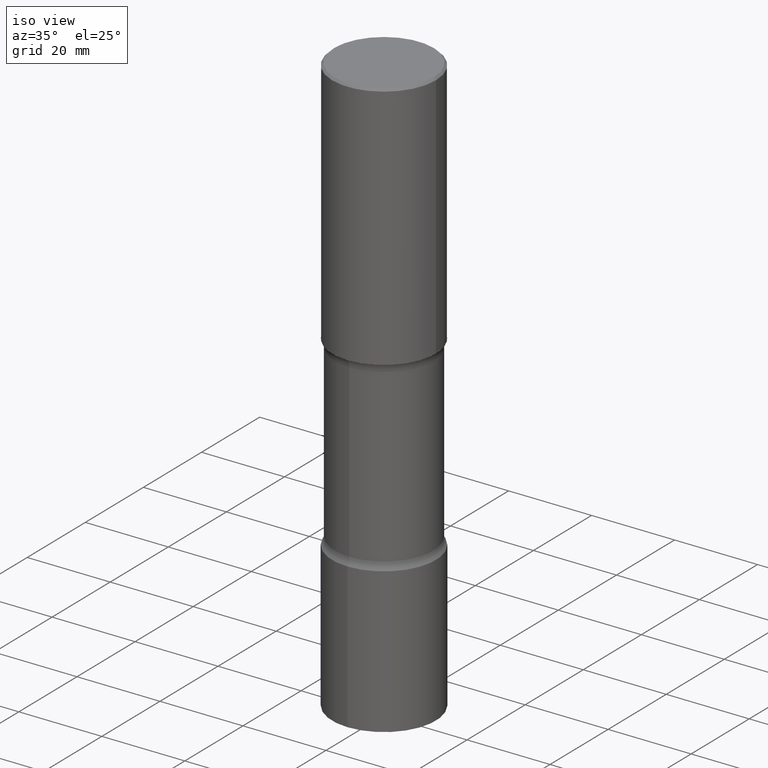
[diagram: clean part render]
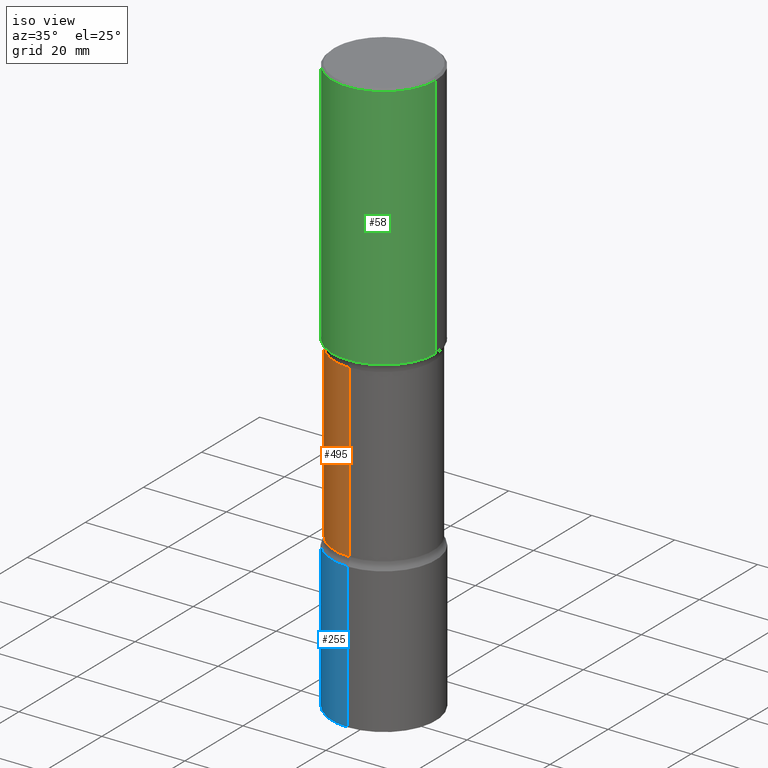
[diagram: same view with three faces highlighted in distinct colors, each labeled with its STEP entity id]
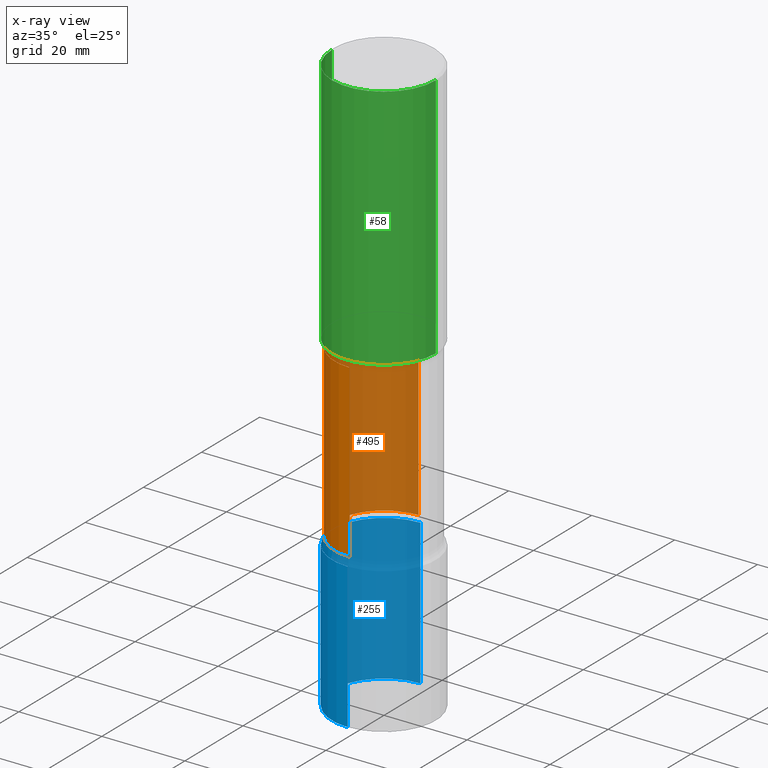
[diagram: x-ray of the same camera — body ghosted, the three highlighted faces saturated]
A machine part, iso view with three faces highlighted in distinct colors.
The next image is the same camera in x-ray (body ghosted, the three faces saturated) — at least one of them is partly hidden behind the body in this view.
Their STEP definitions:

[orange] entity #495 — the highlighted cylindrical surface (partial cylindrical patch) has radius 11.8745 mm, axis along (0, -0, -1).
#23 = ORIENTED_EDGE ( 'NONE', *, *, #118, .F. ) ;
#61 = CARTESIAN_POINT ( 'NONE',  ( 1.362460799564217853E-28, -1.903573477369563005E-14, -5.511800000000000033 ) ) ;
#64 = VERTEX_POINT ( 'NONE', #504 ) ;
#66 = DIRECTION ( 'NONE',  ( 6.982962677686265133E-15, 1.000000000000000000, -2.337410048054982819E-15 ) ) ;
#67 = EDGE_CURVE ( 'NONE', #64, #481, #508, .T. ) ;
#72 = AXIS2_PLACEMENT_3D ( 'NONE', #349, #318, #201 ) ;
#81 = CIRCLE ( 'NONE', #302, 0.4675000000000004707 ) ;
#106 = EDGE_LOOP ( 'NONE', ( #23, #200, #121, #144 ) ) ;
#117 = CIRCLE ( 'NONE', #72, 0.4675000000000001932 ) ;
#118 = EDGE_CURVE ( 'NONE', #402, #207, #187, .T. ) ;
#121 = ORIENTED_EDGE ( 'NONE', *, *, #67, .T. ) ;
#144 = ORIENTED_EDGE ( 'NONE', *, *, #247, .F. ) ;
#181 = CARTESIAN_POINT ( 'NONE',  ( -3.207282813958056946E-15, -0.4675000000000194000, -5.511799999999999145 ) ) ;
#187 = LINE ( 'NONE', #181, #348 ) ;
#200 = ORIENTED_EDGE ( 'NONE', *, *, #328, .T. ) ;
#201 = DIRECTION ( 'NONE',  ( 6.982962677686265133E-15, 1.000000000000000000, -3.506115072082475215E-15 ) ) ;
#207 = VERTEX_POINT ( 'NONE', #345 ) ;
#225 = CARTESIAN_POINT ( 'NONE',  ( 3.264535051818467659E-15, 0.4674999999999812639, -5.511800000000000921 ) ) ;
#235 = DIRECTION ( 'NONE',  ( 6.982962677686265133E-15, 1.000000000000000000, -3.506115072082473243E-15 ) ) ;
#247 = EDGE_CURVE ( 'NONE', #207, #481, #81, .T. ) ;
#302 = AXIS2_PLACEMENT_3D ( 'NONE', #353, #397, #235 ) ;
#304 = DIRECTION ( 'NONE',  ( 2.550468296811760761E-29, -3.341116092065950250E-15, -1.000000000000000000 ) ) ;
#318 = DIRECTION ( 'NONE',  ( 2.550468296811760761E-29, -3.341116092065950250E-15, -1.000000000000000000 ) ) ;
#327 = CARTESIAN_POINT ( 'NONE',  ( -3.291838451780669043E-15, -0.4675000000000089639, -2.436731050576250723 ) ) ;
#328 = EDGE_CURVE ( 'NONE', #402, #64, #117, .T. ) ;
#342 = AXIS2_PLACEMENT_3D ( 'NONE', #61, #369, #66 ) ;
#345 = CARTESIAN_POINT ( 'NONE',  ( -3.291838451780625655E-15, -0.4675000000000146816, -4.059268949423747053 ) ) ;
#348 = VECTOR ( 'NONE', #304, 39.37007874015748143 ) ;
#349 = CARTESIAN_POINT ( 'NONE',  ( 5.781742129626663018E-29, -8.761572422563614587E-15, -2.436731050576252500 ) ) ;
#353 = CARTESIAN_POINT ( 'NONE',  ( 9.919973601012768158E-29, -1.418265990638985854E-14, -4.059268949423747941 ) ) ;
#366 = VECTOR ( 'NONE', #387, 39.37007874015748143 ) ;
#369 = DIRECTION ( 'NONE',  ( 2.550468296811760761E-29, -3.341116092065950250E-15, -1.000000000000000000 ) ) ;
#387 = DIRECTION ( 'NONE',  ( 2.550468296811760761E-29, -3.341116092065950250E-15, -1.000000000000000000 ) ) ;
#397 = DIRECTION ( 'NONE',  ( 2.550468296811760761E-29, -3.341116092065950250E-15, -1.000000000000000000 ) ) ;
#402 = VERTEX_POINT ( 'NONE', #327 ) ;
#448 = CARTESIAN_POINT ( 'NONE',  ( 3.264535051818431371E-15, 0.4674999999999862599, -4.059268949423749717 ) ) ;
#455 = FACE_OUTER_BOUND ( 'NONE', #106, .T. ) ;
#481 = VERTEX_POINT ( 'NONE', #448 ) ;
#482 = CYLINDRICAL_SURFACE ( 'NONE', #342, 0.4675000000000003597 ) ;
#495 = ADVANCED_FACE ( 'NONE', ( #455 ), #482, .T. ) ;
#504 = CARTESIAN_POINT ( 'NONE',  ( 3.264535051818388378E-15, 0.4674999999999914779, -2.436731050576254276 ) ) ;
#508 = LINE ( 'NONE', #225, #366 ) ;

[blue] entity #255 — the highlighted cylindrical surface (partial cylindrical patch) has radius 12.5006 mm, axis along (-0, 0, 1).
#15 = EDGE_CURVE ( 'NONE', #432, #172, #110, .T. ) ;
#24 = DIRECTION ( 'NONE',  ( -2.445706778904536167E-29, 3.491140548364399135E-15, 1.000000000000000000 ) ) ;
#27 = CARTESIAN_POINT ( 'NONE',  ( 1.011006268263557140E-28, -1.443167679882875537E-14, -4.133799999999999919 ) ) ;
#29 = VECTOR ( 'NONE', #425, 39.37007874015748143 ) ;
#49 = VERTEX_POINT ( 'NONE', #137 ) ;
#65 = DIRECTION ( 'NONE',  ( -6.982962677686265922E-15, -1.000000000000000000, 4.440675393541422465E-15 ) ) ;
#91 = DIRECTION ( 'NONE',  ( -6.982962677686265922E-15, -1.000000000000000000, 3.491140548364399135E-15 ) ) ;
#105 = LINE ( 'NONE', #444, #427 ) ;
#110 = CIRCLE ( 'NONE', #492, 0.4921499999999999209 ) ;
#137 = CARTESIAN_POINT ( 'NONE',  ( -3.436665081823194408E-15, -0.4921500000000142983, -4.133799999999998143 ) ) ;
#141 = CIRCLE ( 'NONE', #228, 0.4921499999999999209 ) ;
#146 = LINE ( 'NONE', #149, #29 ) ;
#147 = AXIS2_PLACEMENT_3D ( 'NONE', #355, #360, #91 ) ;
#149 = CARTESIAN_POINT ( 'NONE',  ( -3.436665081823295382E-15, -0.4921499999999999209, 1.718164820877538749E-15 ) ) ;
#172 = VERTEX_POINT ( 'NONE', #339 ) ;
#198 = EDGE_CURVE ( 'NONE', #172, #49, #146, .T. ) ;
#218 = DIRECTION ( 'NONE',  ( -2.445706778904536167E-29, 3.491140548364399135E-15, 1.000000000000000000 ) ) ;
#219 = DIRECTION ( 'NONE',  ( -2.445706778904536167E-29, 3.491140548364399135E-15, 1.000000000000000000 ) ) ;
#222 = ORIENTED_EDGE ( 'NONE', *, *, #15, .T. ) ;
#228 = AXIS2_PLACEMENT_3D ( 'NONE', #27, #24, #446 ) ;
#255 = ADVANCED_FACE ( 'NONE', ( #438 ), #277, .T. ) ;
#257 = ORIENTED_EDGE ( 'NONE', *, *, #408, .F. ) ;
#258 = ORIENTED_EDGE ( 'NONE', *, *, #198, .T. ) ;
#277 = CYLINDRICAL_SURFACE ( 'NONE', #147, 0.4921499999999999209 ) ;
#294 = CARTESIAN_POINT ( 'NONE',  ( 3.496936074043449648E-15, 0.4921499999999806585, -5.511800000000001809 ) ) ;
#339 = CARTESIAN_POINT ( 'NONE',  ( -3.436665081823160487E-15, -0.4921500000000191832, -5.511799999999997368 ) ) ;
#354 = VERTEX_POINT ( 'NONE', #430 ) ;
#355 = CARTESIAN_POINT ( 'NONE',  ( 0.000000000000000000, 0.000000000000000000, 0.000000000000000000 ) ) ;
#360 = DIRECTION ( 'NONE',  ( -2.445706778904536167E-29, 3.491140548364399135E-15, 1.000000000000000000 ) ) ;
#408 = EDGE_CURVE ( 'NONE', #432, #354, #105, .T. ) ;
#416 = ORIENTED_EDGE ( 'NONE', *, *, #443, .F. ) ;
#425 = DIRECTION ( 'NONE',  ( -2.445706778904536167E-29, 3.491140548364399135E-15, 1.000000000000000000 ) ) ;
#427 = VECTOR ( 'NONE', #218, 39.37007874015748143 ) ;
#430 = CARTESIAN_POINT ( 'NONE',  ( 3.496936074043466609E-15, 0.4921499999999854325, -4.133800000000001695 ) ) ;
#432 = VERTEX_POINT ( 'NONE', #294 ) ;
#438 = FACE_OUTER_BOUND ( 'NONE', #442, .T. ) ;
#442 = EDGE_LOOP ( 'NONE', ( #257, #222, #258, #416 ) ) ;
#443 = EDGE_CURVE ( 'NONE', #354, #49, #141, .T. ) ;
#444 = CARTESIAN_POINT ( 'NONE',  ( 3.496936074043331714E-15, 0.4921499999999999209, -1.718164820877538749E-15 ) ) ;
#446 = DIRECTION ( 'NONE',  ( -6.982962677686265922E-15, -1.000000000000000000, 3.330506545156066652E-15 ) ) ;
#449 = CARTESIAN_POINT ( 'NONE',  ( 1.348024662396602390E-28, -1.924246847447489311E-14, -5.511800000000000033 ) ) ;
#492 = AXIS2_PLACEMENT_3D ( 'NONE', #449, #219, #65 ) ;

[green] entity #58 — the highlighted cylindrical surface (partial cylindrical patch) has radius 12.5006 mm, axis along (-0, 0, 1).
#4 = LINE ( 'NONE', #120, #350 ) ;
#26 = EDGE_CURVE ( 'NONE', #439, #359, #292, .T. ) ;
#28 = DIRECTION ( 'NONE',  ( 1.000000000000000000, -6.982962677686265922E-15, 0.000000000000000000 ) ) ;
#47 = AXIS2_PLACEMENT_3D ( 'NONE', #279, #242, #440 ) ;
#58 = ADVANCED_FACE ( 'NONE', ( #428 ), #499, .T. ) ;
#96 = CIRCLE ( 'NONE', #47, 0.4921499999999999764 ) ;
#120 = CARTESIAN_POINT ( 'NONE',  ( 0.4921499999999998098, -3.436665081823294593E-15, 2.399810400207968762E-29 ) ) ;
#122 = CARTESIAN_POINT ( 'NONE',  ( 0.4921499999999996988, -3.446223716380120377E-15, -0.02000000000000013572 ) ) ;
#128 = EDGE_CURVE ( 'NONE', #159, #439, #145, .T. ) ;
#133 = VECTOR ( 'NONE', #465, 39.37007874015748143 ) ;
#145 = LINE ( 'NONE', #153, #133 ) ;
#153 = CARTESIAN_POINT ( 'NONE',  ( -0.4921499999999998098, 3.496936074043331714E-15, -2.420853904668950949E-29 ) ) ;
#159 = VERTEX_POINT ( 'NONE', #468 ) ;
#170 = AXIS2_PLACEMENT_3D ( 'NONE', #491, #374, #28 ) ;
#174 = EDGE_LOOP ( 'NONE', ( #295, #363, #437, #312 ) ) ;
#232 = DIRECTION ( 'NONE',  ( -2.445468806185136877E-29, 3.491481338843145188E-15, 1.000000000000000000 ) ) ;
#242 = DIRECTION ( 'NONE',  ( -2.445468806185136597E-29, 3.491481338843145583E-15, 1.000000000000000000 ) ) ;
#279 = CARTESIAN_POINT ( 'NONE',  ( 5.776686413970527511E-29, -8.247577218615276471E-15, -2.362199999999999189 ) ) ;
#292 = CIRCLE ( 'NONE', #170, 0.4921499999999996988 ) ;
#295 = ORIENTED_EDGE ( 'NONE', *, *, #128, .F. ) ;
#303 = DIRECTION ( 'NONE',  ( 1.000000000000000000, -6.982962677686265922E-15, 4.876176775795935793E-29 ) ) ;
#312 = ORIENTED_EDGE ( 'NONE', *, *, #26, .F. ) ;
#330 = CARTESIAN_POINT ( 'NONE',  ( 0.4921499999999999764, -1.168424230043857067E-14, -2.362199999999999189 ) ) ;
#350 = VECTOR ( 'NONE', #232, 39.37007874015748143 ) ;
#352 = EDGE_CURVE ( 'NONE', #159, #454, #96, .T. ) ;
#359 = VERTEX_POINT ( 'NONE', #122 ) ;
#362 = EDGE_CURVE ( 'NONE', #454, #359, #4, .T. ) ;
#363 = ORIENTED_EDGE ( 'NONE', *, *, #352, .T. ) ;
#371 = CARTESIAN_POINT ( 'NONE',  ( -0.4921499999999996988, 3.366835455046430506E-15, -0.02000000000000013572 ) ) ;
#374 = DIRECTION ( 'NONE',  ( -2.445468806185136597E-29, 3.491481338843145583E-15, 1.000000000000000000 ) ) ;
#398 = AXIS2_PLACEMENT_3D ( 'NONE', #422, #420, #303 ) ;
#420 = DIRECTION ( 'NONE',  ( -2.445468806185136597E-29, 3.491481338843145583E-15, 1.000000000000000000 ) ) ;
#422 = CARTESIAN_POINT ( 'NONE',  ( 0.000000000000000000, 0.000000000000000000, 0.000000000000000000 ) ) ;
#428 = FACE_OUTER_BOUND ( 'NONE', #174, .T. ) ;
#437 = ORIENTED_EDGE ( 'NONE', *, *, #362, .T. ) ;
#439 = VERTEX_POINT ( 'NONE', #371 ) ;
#440 = DIRECTION ( 'NONE',  ( 1.000000000000000000, -6.982962677686263555E-15, 0.000000000000000000 ) ) ;
#454 = VERTEX_POINT ( 'NONE', #330 ) ;
#465 = DIRECTION ( 'NONE',  ( -2.445468806185136877E-29, 3.491481338843145188E-15, 1.000000000000000000 ) ) ;
#468 = CARTESIAN_POINT ( 'NONE',  ( -0.4921499999999999764, -6.617673486527353114E-16, -2.362199999999999189 ) ) ;
#491 = CARTESIAN_POINT ( 'NONE',  ( 4.890937612370306439E-31, -6.982962677686338448E-17, -0.02000000000000013572 ) ) ;
#499 = CYLINDRICAL_SURFACE ( 'NONE', #398, 0.4921499999999998098 ) ;